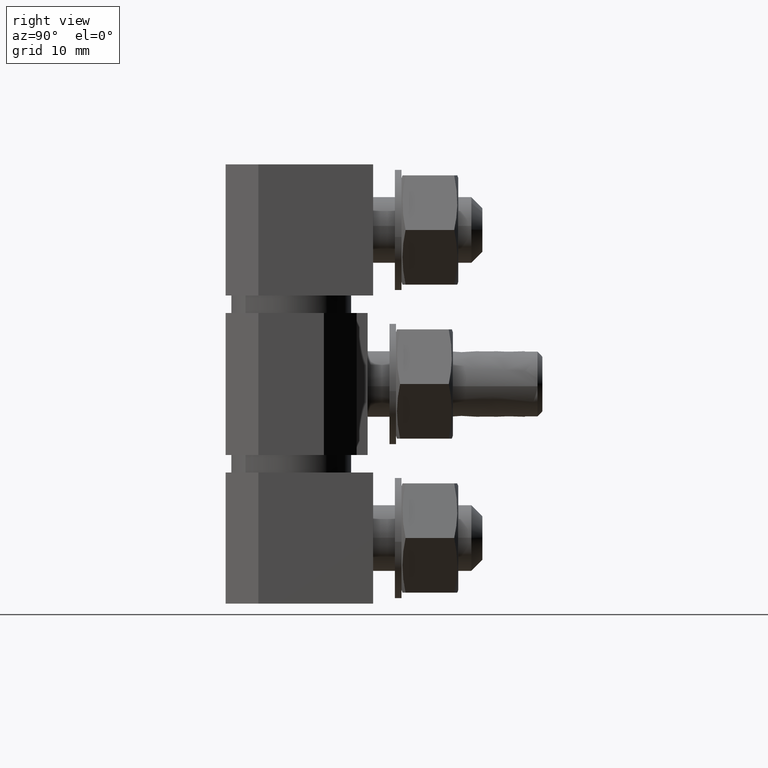
[diagram: clean part render]
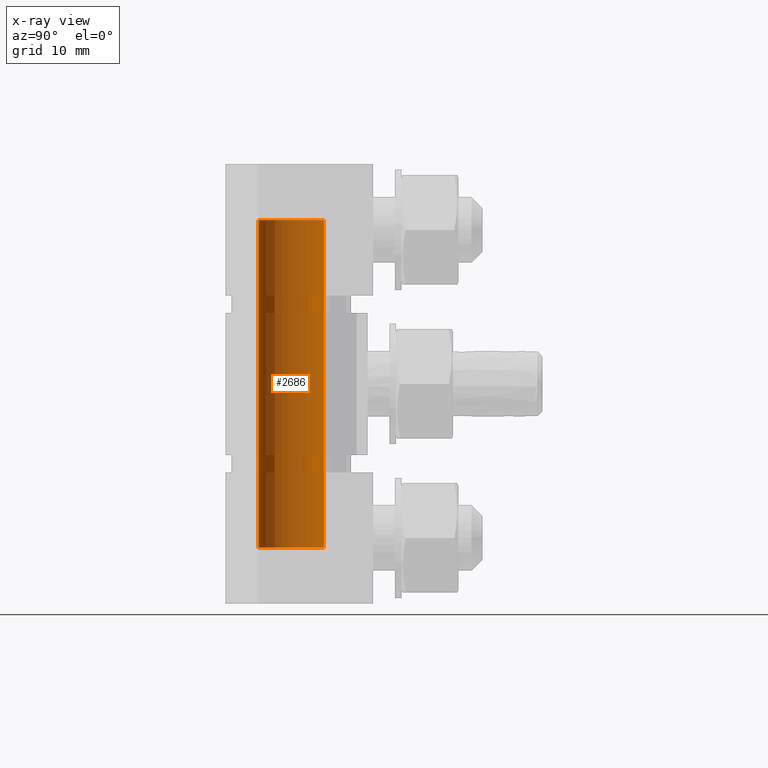
[diagram: x-ray — body ghosted, one internal face saturated and labeled with its STEP entity id]
A machine part, right view, then the same camera in x-ray: the body is ghosted and one INTERNAL B-rep face — a face not visible from any outside direction — is saturated and labeled: STEP entity #2686.
In plain terms, the highlighted face is a freeform B-spline surface patch.
Its self-contained STEP definition (entity closure, byte-faithful):
#2580=CARTESIAN_POINT('',(0.398312643526410,-2.973773557622238,35.850002084251805));
#2581=CARTESIAN_POINT('',(0.376145344625015,-2.976408477117738,35.850002084251805));
#2582=CARTESIAN_POINT('',(0.268844185913963,-2.989162846345817,35.850002084251805));
#2583=CARTESIAN_POINT('',(0.183145618604601,-2.994404395265600,35.850002084251813));
#2584=CARTESIAN_POINT('',(-2.811258776660998,-3.177550013870171,35.850002084251813));
#2585=CARTESIAN_POINT('',(-2.994404395265570,-0.183145618604571,35.850002084251813));
#2586=CARTESIAN_POINT('',(-3.177550013870141,2.811258776661029,35.850002084251813));
#2587=CARTESIAN_POINT('',(-0.161610075625939,2.995721565500536,35.850002084251820));
#2588=CARTESIAN_POINT('',(-0.140202460076826,2.997030911358692,35.850002084251791));
#2589=CARTESIAN_POINT('',(0.398312643526410,-2.973773557622238,4.331250587193122));
#2590=CARTESIAN_POINT('',(0.376145344625015,-2.976408477117738,4.331250587193122));
#2591=CARTESIAN_POINT('',(0.268844185913963,-2.989162846345817,4.331250587193122));
#2592=CARTESIAN_POINT('',(0.183145618604601,-2.994404395265600,4.331250587193122));
#2593=CARTESIAN_POINT('',(-2.811258776660998,-3.177550013870171,4.331250587193121));
#2594=CARTESIAN_POINT('',(-2.994404395265570,-0.183145618604571,4.331250587193122));
#2595=CARTESIAN_POINT('',(-3.177550013870141,2.811258776661029,4.331250587193121));
#2596=CARTESIAN_POINT('',(-0.161610075625939,2.995721565500536,4.331250587193123));
#2597=CARTESIAN_POINT('',(-0.140202460076826,2.997030911358692,4.331250587193120));
#2605=(BOUNDED_SURFACE()B_SPLINE_SURFACE(2,1,((#2580,#2589),(#2581,#2590),(#2582,#2591),(#2583,#2592),(#2584,#2593),(#2585,#2594),(#2586,#2595),(#2587,#2596),(#2588,#2597)),.UNSPECIFIED.,.F.,.F.,.U.)B_SPLINE_SURFACE_WITH_KNOTS((3,1,2,2,1,3),(2,2),(0.0,0.050699771398053,0.249522281337139,5.220085029814278,10.190647778291421,10.241354043648590),(0.0,31.518751497058691),.UNSPECIFIED.)GEOMETRIC_REPRESENTATION_ITEM()RATIONAL_B_SPLINE_SURFACE(((0.972008777463900,0.972008777463900),(0.974757289129514,0.974757289129514),(0.988284271247462,0.988284271247462),(1.0,1.0),(0.707106781186548,0.707106781186548),(1.0,1.0),(0.707106781186548,0.707106781186548),(1.002987895340225,1.002987895340225),(1.005975790680451,1.005975790680451)))REPRESENTATION_ITEM('')SURFACE());
#2606=CARTESIAN_POINT('',(0.354102703993498,-2.979028579088243,5.100000623706748));
#2607=VERTEX_POINT('',#2606);
#2608=CARTESIAN_POINT('',(-2.999999999999970,0.0,5.100000623706750));
#2609=VERTEX_POINT('',#2608);
#2610=CARTESIAN_POINT('',(0.354102703993498,-2.979028579088242,5.100000623706748));
#2611=CARTESIAN_POINT('',(0.177672358979199,-3.000000000000000,5.100000623706750));
#2612=CARTESIAN_POINT('',(3.019807E-014,-3.0,5.100000623706750));
#2613=CARTESIAN_POINT('',(-2.999999999999971,-3.0,5.100000623706750));
#2614=CARTESIAN_POINT('',(-2.999999999999970,0.0,5.100000623706750));
#2622=(BOUNDED_CURVE()B_SPLINE_CURVE(2,(#2610,#2611,#2612,#2613,#2614),.UNSPECIFIED.,.F.,.U.)B_SPLINE_CURVE_WITH_KNOTS((3,2,3),(0.229562473513013,0.250000000000000,0.500000000000000),.UNSPECIFIED.)CURVE()GEOMETRIC_REPRESENTATION_ITEM()RATIONAL_B_SPLINE_CURVE((0.956026754182728,0.976055948330564,1.0,0.707106781186548,1.0))REPRESENTATION_ITEM(''));
#2623=EDGE_CURVE('',#2607,#2609,#2622,.T.);
#2624=ORIENTED_EDGE('',*,*,#2623,.F.);
#2625=CARTESIAN_POINT('',(0.354102703993498,-2.979028579088243,35.100002048628753));
#2626=VERTEX_POINT('',#2625);
#2627=CARTESIAN_POINT('',(0.354102703993498,-2.979028579088243,35.100002048628753));
#2628=CARTESIAN_POINT('',(0.354102703993498,-2.979028579088243,5.100000623706748));
#2629=QUASI_UNIFORM_CURVE('',1,(#2627,#2628),.UNSPECIFIED.,.F.,.U.);
#2630=EDGE_CURVE('',#2626,#2607,#2629,.T.);
#2631=ORIENTED_EDGE('',*,*,#2630,.F.);
#2632=CARTESIAN_POINT('',(-2.999999999999970,0.0,35.100002048628753));
#2633=VERTEX_POINT('',#2632);
#2634=CARTESIAN_POINT('',(0.354102703993498,-2.979028579088242,35.100002048628753));
#2635=CARTESIAN_POINT('',(0.177672358979198,-3.000000000000000,35.100002048628753));
#2636=CARTESIAN_POINT('',(3.019807E-014,-3.0,35.100002048628753));
#2637=CARTESIAN_POINT('',(-2.999999999999971,-3.0,35.100002048628745));
#2638=CARTESIAN_POINT('',(-2.999999999999970,0.0,35.100002048628753));
#2646=(BOUNDED_CURVE()B_SPLINE_CURVE(2,(#2634,#2635,#2636,#2637,#2638),.UNSPECIFIED.,.F.,.U.)B_SPLINE_CURVE_WITH_KNOTS((3,2,3),(0.229562473513013,0.250000000000000,0.500000000000000),.UNSPECIFIED.)CURVE()GEOMETRIC_REPRESENTATION_ITEM()RATIONAL_B_SPLINE_CURVE((0.956026754182728,0.976055948330564,1.0,0.707106781186548,1.0))REPRESENTATION_ITEM(''));
#2647=EDGE_CURVE('',#2626,#2633,#2646,.T.);
#2648=ORIENTED_EDGE('',*,*,#2647,.T.);
#2649=CARTESIAN_POINT('',(-0.183140154085468,2.994404729479895,35.100002048628753));
#2650=VERTEX_POINT('',#2649);
#2651=CARTESIAN_POINT('',(-2.999999999999970,0.0,35.100002048628753));
#2652=CARTESIAN_POINT('',(-2.999999999999970,2.822123360457127,35.100002048628738));
#2653=CARTESIAN_POINT('',(-0.183140154085468,2.994404729479896,35.100002048628738));
#2661=(BOUNDED_CURVE()B_SPLINE_CURVE(2,(#2651,#2652,#2653),.UNSPECIFIED.,.F.,.U.)B_SPLINE_CURVE_WITH_KNOTS((3,3),(0.500000000000000,0.739333277124436),.UNSPECIFIED.)CURVE()GEOMETRIC_REPRESENTATION_ITEM()RATIONAL_B_SPLINE_CURVE((1.0,0.719603624375408,0.976072716527199))REPRESENTATION_ITEM(''));
#2662=EDGE_CURVE('',#2633,#2650,#2661,.T.);
#2663=ORIENTED_EDGE('',*,*,#2662,.T.);
#2664=CARTESIAN_POINT('',(-0.183140085979344,2.994404733645193,5.100000623706760));
#2665=VERTEX_POINT('',#2664);
#2666=CARTESIAN_POINT('',(-0.183140154085468,2.994404729479895,35.100002048628753));
#2667=CARTESIAN_POINT('',(-0.183140085979344,2.994404733645193,5.100000623706760));
#2668=QUASI_UNIFORM_CURVE('',1,(#2666,#2667),.UNSPECIFIED.,.F.,.U.);
#2669=EDGE_CURVE('',#2650,#2665,#2668,.T.);
#2670=ORIENTED_EDGE('',*,*,#2669,.T.);
#2671=CARTESIAN_POINT('',(-2.999999999999970,0.0,5.100000623706750));
#2672=CARTESIAN_POINT('',(-2.999999999999970,2.822123424764738,5.100000623706750));
#2673=CARTESIAN_POINT('',(-0.183140085979344,2.994404733645193,5.100000623706759));
#2681=(BOUNDED_CURVE()B_SPLINE_CURVE(2,(#2671,#2672,#2673),.UNSPECIFIED.,.F.,.U.)B_SPLINE_CURVE_WITH_KNOTS((3,3),(0.500000000000000,0.739333281048922),.UNSPECIFIED.)CURVE()GEOMETRIC_REPRESENTATION_ITEM()RATIONAL_B_SPLINE_CURVE((1.0,0.719603619777586,0.976072724938143))REPRESENTATION_ITEM(''));
#2682=EDGE_CURVE('',#2609,#2665,#2681,.T.);
#2683=ORIENTED_EDGE('',*,*,#2682,.F.);
#2684=EDGE_LOOP('',(#2624,#2631,#2648,#2663,#2670,#2683));
#2685=FACE_OUTER_BOUND('',#2684,.T.);
#2686=ADVANCED_FACE('',(#2685),#2605,.T.);